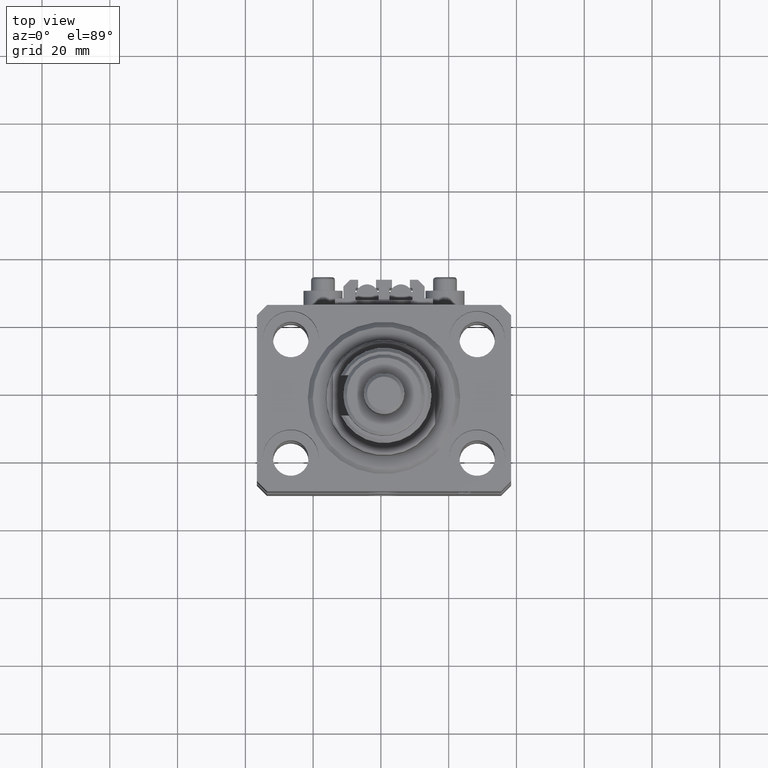
[diagram: clean part render]
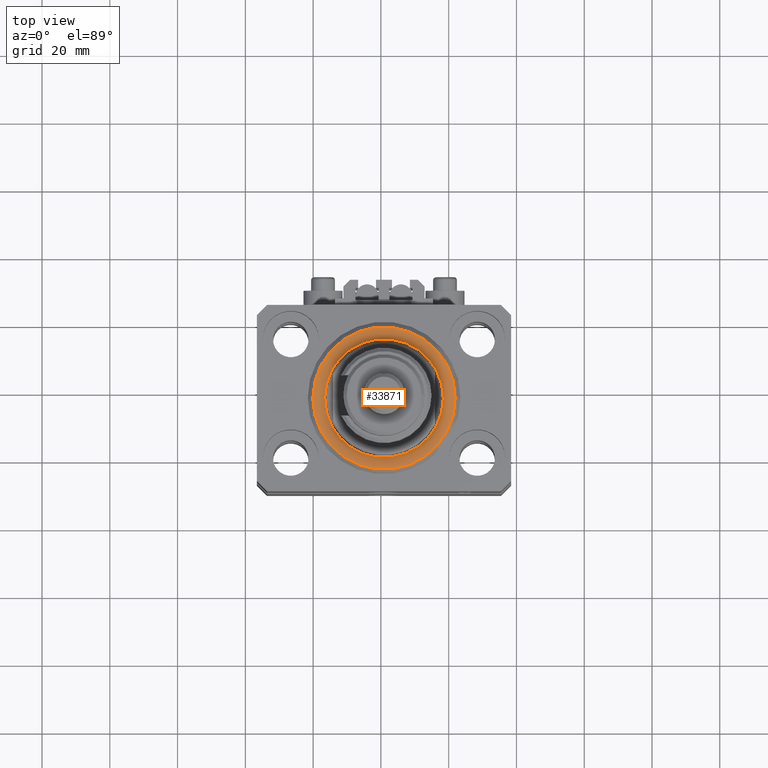
[diagram: same view with one face highlighted and labeled with its STEP entity id]
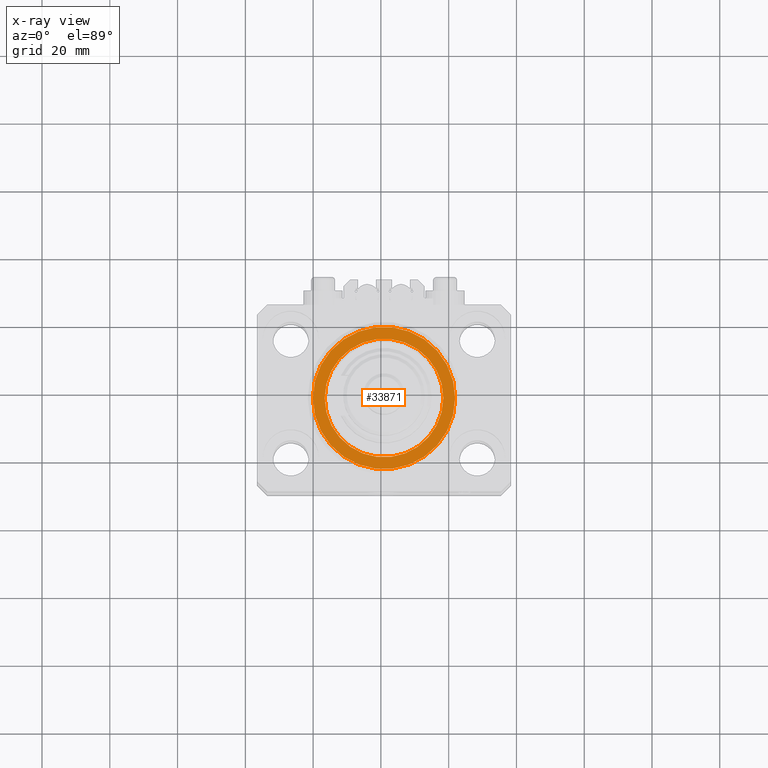
[diagram: x-ray of the same camera — body ghosted, the highlighted face saturated]
A machine part, top view. The second image highlights one B-rep face of the part: STEP entity #33871.
The next image is the same camera in x-ray: the body ghosted, the highlighted face saturated — about 0% of this face is hidden behind the body in this view.
In plain terms, the highlighted planar face has unit normal (0, 0, -1).
Its self-contained STEP definition (entity closure, byte-faithful):
#292 = DIRECTION ( 'NONE',  ( -0.000000000000000000, -0.000000000000000000, -1.000000000000000000 ) ) ;
#579 = CARTESIAN_POINT ( 'NONE',  ( 20.99999999999998934, 0.000000000000000000, 0.000000000000000000 ) ) ;
#4571 = AXIS2_PLACEMENT_3D ( 'NONE', #24347, #44721, #21519 ) ;
#4692 = CIRCLE ( 'NONE', #17728, 20.99999999999998934 ) ;
#6835 = CARTESIAN_POINT ( 'NONE',  ( -17.50000000000000000, 2.143131898507868643E-15, -2.168404344971008868E-16 ) ) ;
#7405 = FACE_BOUND ( 'NONE', #21218, .T. ) ;
#8143 = CARTESIAN_POINT ( 'NONE',  ( 0.000000000000000000, 0.000000000000000000, 0.000000000000000000 ) ) ;
#10305 = ORIENTED_EDGE ( 'NONE', *, *, #43474, .T. ) ;
#10643 = CARTESIAN_POINT ( 'NONE',  ( -20.99999999999998934, 2.663606788145492628E-15, 0.000000000000000000 ) ) ;
#10740 = CARTESIAN_POINT ( 'NONE',  ( 0.000000000000000000, 0.000000000000000000, 0.000000000000000000 ) ) ;
#12529 = AXIS2_PLACEMENT_3D ( 'NONE', #8143, #42603, #16050 ) ;
#13612 = EDGE_CURVE ( 'NONE', #30092, #33356, #4692, .T. ) ;
#15005 = CARTESIAN_POINT ( 'NONE',  ( 0.000000000000000000, 0.000000000000000000, 0.000000000000000000 ) ) ;
#16050 = DIRECTION ( 'NONE',  ( 1.000000000000000000, 0.000000000000000000, -0.000000000000000000 ) ) ;
#17728 = AXIS2_PLACEMENT_3D ( 'NONE', #15005, #38973, #26999 ) ;
#21218 = EDGE_LOOP ( 'NONE', ( #40989, #43004 ) ) ;
#21519 = DIRECTION ( 'NONE',  ( 1.000000000000000000, 0.000000000000000000, 0.000000000000000000 ) ) ;
#23275 = CARTESIAN_POINT ( 'NONE',  ( 0.000000000000000000, 0.000000000000000000, 0.000000000000000000 ) ) ;
#23976 = FACE_OUTER_BOUND ( 'NONE', #37506, .T. ) ;
#24347 = CARTESIAN_POINT ( 'NONE',  ( 0.000000000000000000, 0.000000000000000000, 0.000000000000000000 ) ) ;
#24890 = CIRCLE ( 'NONE', #29768, 17.50000000000000000 ) ;
#26295 = VERTEX_POINT ( 'NONE', #44168 ) ;
#26999 = DIRECTION ( 'NONE',  ( 1.000000000000000000, 0.000000000000000000, 0.000000000000000000 ) ) ;
#27057 = PLANE ( 'NONE',  #12529 ) ;
#28999 = CIRCLE ( 'NONE', #4571, 17.50000000000000000 ) ;
#29768 = AXIS2_PLACEMENT_3D ( 'NONE', #10740, #46472, #42379 ) ;
#30092 = VERTEX_POINT ( 'NONE', #579 ) ;
#33356 = VERTEX_POINT ( 'NONE', #10643 ) ;
#33871 = ADVANCED_FACE ( 'NONE', ( #7405, #23976 ), #27057, .F. ) ;
#34086 = VERTEX_POINT ( 'NONE', #6835 ) ;
#34999 = DIRECTION ( 'NONE',  ( 1.000000000000000000, 0.000000000000000000, 0.000000000000000000 ) ) ;
#36381 = EDGE_CURVE ( 'NONE', #34086, #26295, #24890, .T. ) ;
#37341 = CIRCLE ( 'NONE', #43016, 20.99999999999998934 ) ;
#37506 = EDGE_LOOP ( 'NONE', ( #47751, #10305 ) ) ;
#38845 = EDGE_CURVE ( 'NONE', #26295, #34086, #28999, .T. ) ;
#38973 = DIRECTION ( 'NONE',  ( -0.000000000000000000, -0.000000000000000000, -1.000000000000000000 ) ) ;
#40989 = ORIENTED_EDGE ( 'NONE', *, *, #38845, .T. ) ;
#42379 = DIRECTION ( 'NONE',  ( 1.000000000000000000, 0.000000000000000000, 0.000000000000000000 ) ) ;
#42603 = DIRECTION ( 'NONE',  ( 0.000000000000000000, 0.000000000000000000, 1.000000000000000000 ) ) ;
#43004 = ORIENTED_EDGE ( 'NONE', *, *, #36381, .T. ) ;
#43016 = AXIS2_PLACEMENT_3D ( 'NONE', #23275, #292, #34999 ) ;
#43474 = EDGE_CURVE ( 'NONE', #33356, #30092, #37341, .T. ) ;
#44168 = CARTESIAN_POINT ( 'NONE',  ( 17.50000000000000000, 0.000000000000000000, -2.168404344971008868E-16 ) ) ;
#44721 = DIRECTION ( 'NONE',  ( 0.000000000000000000, 0.000000000000000000, 1.000000000000000000 ) ) ;
#46472 = DIRECTION ( 'NONE',  ( 0.000000000000000000, 0.000000000000000000, 1.000000000000000000 ) ) ;
#47751 = ORIENTED_EDGE ( 'NONE', *, *, #13612, .T. ) ;